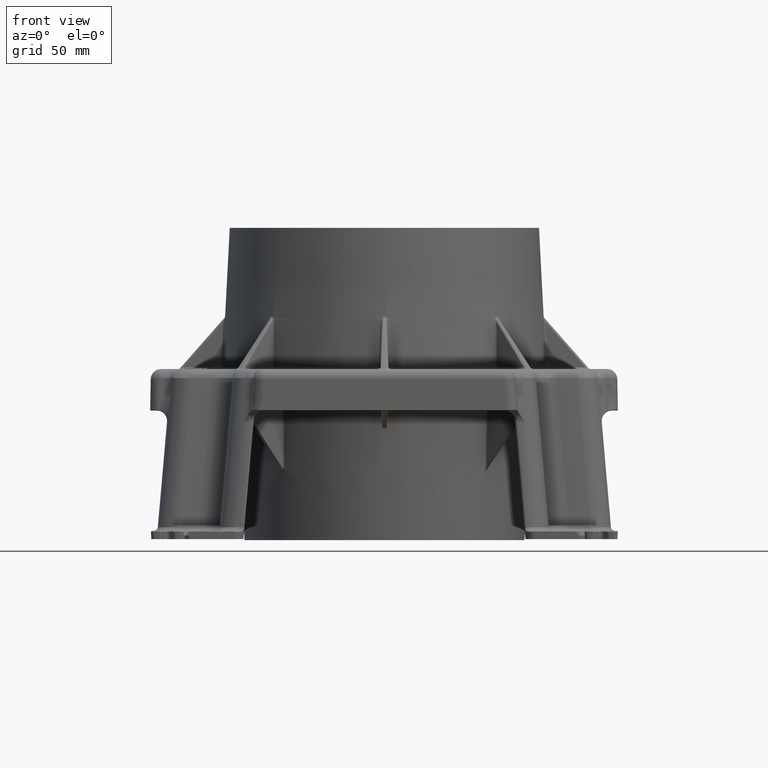
[diagram: clean part render]
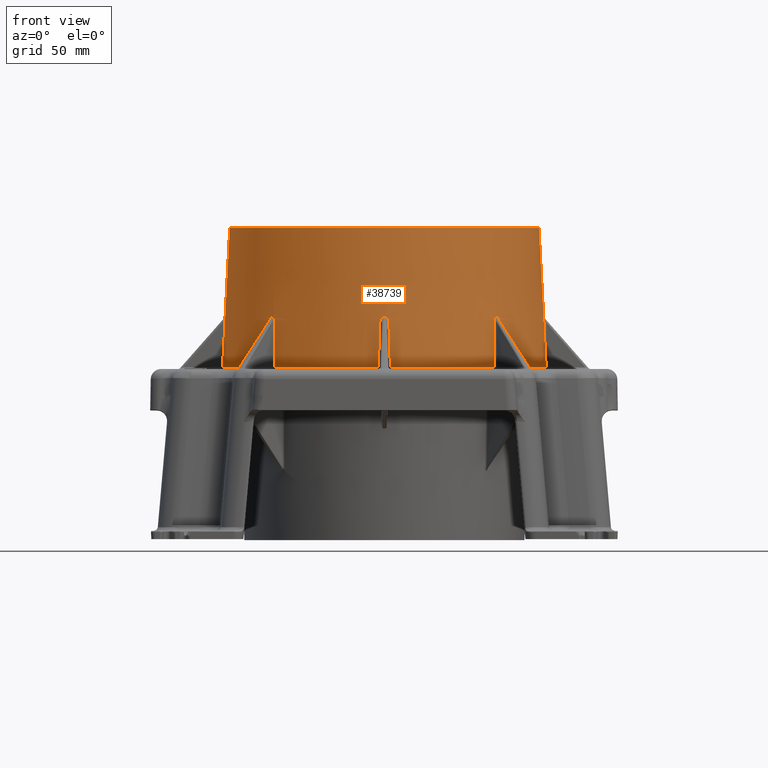
[diagram: same view with one face highlighted and labeled with its STEP entity id]
A machine part, front view. The second image highlights one B-rep face of the part: STEP entity #38739.
In plain terms, the highlighted conical surface has half-angle 3 deg.
Its self-contained STEP definition (entity closure, byte-faithful):
#37868=CARTESIAN_POINT('',(53.054847331327665,57.195955801669868,0.947664043757057));
#37869=VERTEX_POINT('',#37868);
#37909=CARTESIAN_POINT('',(52.801938465628552,55.904205932293458,22.240637407933296));
#37910=VERTEX_POINT('',#37909);
#37911=CARTESIAN_POINT('',(53.054847331327665,57.195955801669868,0.947664043757057));
#37912=CARTESIAN_POINT('',(52.971311480217807,56.766077102563479,8.045375595401914));
#37913=CARTESIAN_POINT('',(52.887019140935713,56.335503526758174,15.143034304313662));
#37914=CARTESIAN_POINT('',(52.801938465628552,55.904205932293458,22.240637407933296));
#37915=B_SPLINE_CURVE_WITH_KNOTS('',3,(#37911,#37912,#37913,#37914),.UNSPECIFIED.,.F.,.U.,(4,4),(-6.81843825506,-4.685046745072007),.UNSPECIFIED.);
#37916=EDGE_CURVE('',#37869,#37910,#37915,.T.);
#37996=CARTESIAN_POINT('',(-57.195955801669825,-53.054847331327707,0.947664043757044));
#37997=VERTEX_POINT('',#37996);
#38016=CARTESIAN_POINT('',(-55.904205931651816,-52.801938465501991,22.240637418491922));
#38017=VERTEX_POINT('',#38016);
#38025=CARTESIAN_POINT('',(-55.904205931651816,-52.801938465502005,22.240637418491922));
#38026=CARTESIAN_POINT('',(-56.335503522490853,-52.88701914009458,15.143034374549798));
#38027=CARTESIAN_POINT('',(-56.766077098065757,-52.971311479343832,8.0453756696631));
#38028=CARTESIAN_POINT('',(-57.19595580166984,-53.054847331327707,0.94766404375705));
#38029=B_SPLINE_CURVE_WITH_KNOTS('',3,(#38025,#38026,#38027,#38028),.UNSPECIFIED.,.F.,.U.,(4,4),(-2.133391532309018,0.0),.UNSPECIFIED.);
#38030=EDGE_CURVE('',#38017,#37997,#38029,.T.);
#38215=CARTESIAN_POINT('',(74.500000000000014,9.123619E-015,68.0));
#38216=VERTEX_POINT('',#38215);
#38217=CARTESIAN_POINT('',(0.0,0.0,68.0));
#38218=DIRECTION('',(0.0,0.0,-1.0));
#38219=DIRECTION('',(-1.0,0.0,0.0));
#38220=AXIS2_PLACEMENT_3D('',#38217,#38218,#38219);
#38221=CIRCLE('',#38220,74.500000000000014);
#38222=EDGE_CURVE('',#38216,#38216,#38221,.T.);
#38230=CARTESIAN_POINT('',(0.0,0.0,68.0));
#38231=DIRECTION('',(0.0,0.0,-1.0));
#38232=DIRECTION('',(-1.0,0.0,0.0));
#38233=AXIS2_PLACEMENT_3D('',#38230,#38231,#38232);
#38234=CONICAL_SURFACE('',#38233,74.500000000000014,3.0);
#38235=CARTESIAN_POINT('',(55.90420593165183,52.801938465501991,22.240637418491929));
#38236=VERTEX_POINT('',#38235);
#38237=CARTESIAN_POINT('',(57.195955801669847,53.054847331327693,0.947664043757044));
#38238=VERTEX_POINT('',#38237);
#38239=CARTESIAN_POINT('',(55.90420593165183,52.801938465501991,22.240637418491929));
#38240=CARTESIAN_POINT('',(56.335503522490868,52.887019140094573,15.143034374549803));
#38241=CARTESIAN_POINT('',(56.766077098065765,52.971311479343825,8.045375669663111));
#38242=CARTESIAN_POINT('',(57.195955801669847,53.054847331327693,0.947664043757059));
#38243=B_SPLINE_CURVE_WITH_KNOTS('',3,(#38239,#38240,#38241,#38242),.UNSPECIFIED.,.F.,.U.,(4,4),(-2.133391532309019,0.0),.UNSPECIFIED.);
#38244=EDGE_CURVE('',#38236,#38238,#38243,.T.);
#38245=ORIENTED_EDGE('',*,*,#38244,.F.);
#38246=CARTESIAN_POINT('',(55.182350522342404,53.363538940598502,24.794415291459742));
#38247=VERTEX_POINT('',#38246);
#38248=CARTESIAN_POINT('',(55.182255056040347,53.363641900041671,24.794284926839381));
#38249=CARTESIAN_POINT('',(55.230464751262872,53.319096194086015,24.723799526863882));
#38250=CARTESIAN_POINT('',(55.668305512340496,52.919266538942097,24.006650969126227));
#38251=CARTESIAN_POINT('',(55.854297446739139,52.792093180820473,23.061951105279945));
#38252=CARTESIAN_POINT('',(55.90420593165183,52.801938465501991,22.240637418491929));
#38253=B_SPLINE_CURVE_WITH_KNOTS('',3,(#38248,#38249,#38250,#38251,#38252),.UNSPECIFIED.,.F.,.U.,(4,1,4),(-1.930108454011966,-1.901445513878087,-1.654575739122429),.UNSPECIFIED.);
#38254=EDGE_CURVE('',#38247,#38236,#38253,.T.);
#38255=ORIENTED_EDGE('',*,*,#38254,.F.);
#38256=CARTESIAN_POINT('',(54.260452609866562,54.260452609866817,25.337097431648459));
#38257=VERTEX_POINT('',#38256);
#38258=CARTESIAN_POINT('',(55.182255057010707,53.363641899145044,24.794284925420641));
#38259=CARTESIAN_POINT('',(55.022853171620667,53.510929067867707,25.027339824727463));
#38260=CARTESIAN_POINT('',(54.732788556378402,53.787234134316236,25.316683494421532));
#38261=CARTESIAN_POINT('',(54.379215315393807,54.140125938499075,25.357777473758752));
#38262=CARTESIAN_POINT('',(54.260492676443292,54.260430090523151,25.336742514853803));
#38263=B_SPLINE_CURVE_WITH_KNOTS('',3,(#38258,#38259,#38260,#38261,#38262),.UNSPECIFIED.,.F.,.U.,(4,1,4),(1.930108453819656,2.024880401255916,2.075938405538209),.UNSPECIFIED.);
#38264=EDGE_CURVE('',#38247,#38257,#38263,.T.);
#38265=ORIENTED_EDGE('',*,*,#38264,.T.);
#38266=CARTESIAN_POINT('',(52.801938465628552,55.904205932293465,22.240637407933296));
#38267=CARTESIAN_POINT('',(52.794538260660957,55.866692241646057,22.857977492173582));
#38268=CARTESIAN_POINT('',(52.910161114996995,55.683291894300055,23.896453487385433));
#38269=CARTESIAN_POINT('',(53.38526306774871,55.15248740725508,24.939472785987217));
#38270=CARTESIAN_POINT('',(53.874392963873987,54.645253390838143,25.330449189616417));
#38271=CARTESIAN_POINT('',(54.14153416617787,54.377778992199389,25.358366510191996));
#38272=CARTESIAN_POINT('',(54.260385393831633,54.26052415617611,25.336978251210958));
#38273=B_SPLINE_CURVE_WITH_KNOTS('',3,(#38266,#38267,#38268,#38269,#38270,#38271,#38272),.UNSPECIFIED.,.F.,.U.,(4,1,1,1,4),(1.657452233987004,1.843011795419855,1.966718169876888,2.028571357105404,2.079662163757458),.UNSPECIFIED.);
#38274=EDGE_CURVE('',#37910,#38257,#38273,.T.);
#38275=ORIENTED_EDGE('',*,*,#38274,.F.);
#38276=ORIENTED_EDGE('',*,*,#37916,.F.);
#38277=CARTESIAN_POINT('',(2.928205881007981,77.959090526605621,0.947664043757044));
#38278=VERTEX_POINT('',#38277);
#38279=CARTESIAN_POINT('',(-4.440892E-015,0.0,0.947664043757044));
#38280=DIRECTION('',(0.0,0.0,-1.0));
#38281=DIRECTION('',(0.38268343236509,0.923879532511287,0.0));
#38282=AXIS2_PLACEMENT_3D('',#38279,#38280,#38281);
#38283=CIRCLE('',#38282,78.014064023207112);
#38284=EDGE_CURVE('',#38278,#37869,#38283,.T.);
#38285=ORIENTED_EDGE('',*,*,#38284,.F.);
#38286=CARTESIAN_POINT('',(2.193634362368942,76.866851859871488,22.240637418491929));
#38287=VERTEX_POINT('',#38286);
#38288=CARTESIAN_POINT('',(2.193634362368942,76.866851859871488,22.240637418491929));
#38289=CARTESIAN_POINT('',(2.438446691608308,77.231986433015535,15.143034374549803));
#38290=CARTESIAN_POINT('',(2.683304502011844,77.596051612789509,8.045375669663105));
#38291=CARTESIAN_POINT('',(2.928205881007977,77.959090526605621,0.94766404375705));
#38292=B_SPLINE_CURVE_WITH_KNOTS('',3,(#38288,#38289,#38290,#38291),.UNSPECIFIED.,.F.,.U.,(4,4),(-2.13339153230902,0.0),.UNSPECIFIED.);
#38293=EDGE_CURVE('',#38287,#38278,#38292,.T.);
#38294=ORIENTED_EDGE('',*,*,#38293,.F.);
#38295=CARTESIAN_POINT('',(1.286094003151709,76.753534509170933,24.794415291459757));
#38296=VERTEX_POINT('',#38295);
#38297=CARTESIAN_POINT('',(1.28644920824102,76.753524624119308,24.794749951119329));
#38298=CARTESIAN_POINT('',(1.351278941800433,76.756103653816098,24.72461145238471));
#38299=CARTESIAN_POINT('',(1.933549834899886,76.782830995002001,24.011713725030816));
#38300=CARTESIAN_POINT('',(2.16530394602201,76.824597392900927,23.061993311493374));
#38301=CARTESIAN_POINT('',(2.193634362368933,76.866851859871488,22.240637418491914));
#38302=B_SPLINE_CURVE_WITH_KNOTS('',3,(#38297,#38298,#38299,#38300,#38301),.UNSPECIFIED.,.F.,.U.,(4,1,4),(-1.930135368209171,-1.901457402243659,-1.65457494117999),.UNSPECIFIED.);
#38303=EDGE_CURVE('',#38296,#38287,#38302,.T.);
#38304=ORIENTED_EDGE('',*,*,#38303,.F.);
#38305=CARTESIAN_POINT('',(-5.529015E-014,76.735867981376074,25.337097431648452));
#38306=VERTEX_POINT('',#38305);
#38307=CARTESIAN_POINT('',(1.286914286049381,76.753543132016162,24.794246641002374));
#38308=CARTESIAN_POINT('',(1.212086019165678,76.750564296909602,24.875250092160218));
#38309=CARTESIAN_POINT('',(0.981621410077059,76.742805663596201,25.091783440041443));
#38310=CARTESIAN_POINT('',(0.547595802217504,76.735047663587991,25.327764805538418));
#38311=CARTESIAN_POINT('',(0.167879576463383,76.734747442547658,25.358063283216378));
#38312=CARTESIAN_POINT('',(0.000037842476934,76.735874341879125,25.336862507699184));
#38313=B_SPLINE_CURVE_WITH_KNOTS('',3,(#38307,#38308,#38309,#38310,#38311,#38312),.UNSPECIFIED.,.F.,.U.,(4,1,1,4),(1.930066780503768,1.963178017509576,2.024898632775494,2.075904213942357),.UNSPECIFIED.);
#38314=EDGE_CURVE('',#38296,#38306,#38313,.T.);
#38315=ORIENTED_EDGE('',*,*,#38314,.T.);
#38316=CARTESIAN_POINT('',(-2.193634362733158,76.86685186041467,22.240637407933271));
#38317=VERTEX_POINT('',#38316);
#38318=CARTESIAN_POINT('',(-2.193634362733165,76.86685186041467,22.240637407933264));
#38319=CARTESIAN_POINT('',(-2.172340912803818,76.835092940255777,22.857977492173497));
#38320=CARTESIAN_POINT('',(-1.960896692447957,76.787166823006658,23.896455845218647));
#38321=CARTESIAN_POINT('',(-1.249615126917981,76.747779343347815,24.939472800435158));
#38322=CARTESIAN_POINT('',(-0.545079510925728,76.73497777707459,25.330449848971973));
#38323=CARTESIAN_POINT('',(-0.167050131606044,76.734742215217011,25.358366622258135));
#38324=CARTESIAN_POINT('',(-0.000098073252763,76.735871041149608,25.336978279321507));
#38325=B_SPLINE_CURVE_WITH_KNOTS('',3,(#38318,#38319,#38320,#38321,#38322,#38323,#38324),.UNSPECIFIED.,.F.,.U.,(4,1,1,1,4),(1.657452233987,1.843011795419844,1.966718169876873,2.028571357105387,2.079662163757464),.UNSPECIFIED.);
#38326=EDGE_CURVE('',#38317,#38306,#38325,.T.);
#38327=ORIENTED_EDGE('',*,*,#38326,.F.);
#38328=CARTESIAN_POINT('',(-2.928205881008001,77.959090526605621,0.947664043757055));
#38329=VERTEX_POINT('',#38328);
#38330=CARTESIAN_POINT('',(-2.928205881008001,77.959090526605621,0.947664043757055));
#38331=CARTESIAN_POINT('',(-2.683304504404402,77.596051616336169,8.045375600322863));
#38332=CARTESIAN_POINT('',(-2.438446693878839,77.231986436400831,15.143034308724467));
#38333=CARTESIAN_POINT('',(-2.193634362733157,76.86685186041467,22.240637407933292));
#38334=B_SPLINE_CURVE_WITH_KNOTS('',3,(#38330,#38331,#38332,#38333),.UNSPECIFIED.,.F.,.U.,(4,4),(-6.818438256536871,-4.685046745069766),.UNSPECIFIED.);
#38335=EDGE_CURVE('',#38329,#38317,#38334,.T.);
#38336=ORIENTED_EDGE('',*,*,#38335,.F.);
#38337=CARTESIAN_POINT('',(-53.054847331327707,57.195955801669825,0.947664043757044));
#38338=VERTEX_POINT('',#38337);
#38339=CARTESIAN_POINT('',(2.220446E-015,0.0,0.947664043757044));
#38340=DIRECTION('',(0.0,0.0,-1.0));
#38341=DIRECTION('',(-0.38268343236509,0.923879532511287,0.0));
#38342=AXIS2_PLACEMENT_3D('',#38339,#38340,#38341);
#38343=CIRCLE('',#38342,78.014064023207126);
#38344=EDGE_CURVE('',#38338,#38329,#38343,.T.);
#38345=ORIENTED_EDGE('',*,*,#38344,.F.);
#38346=CARTESIAN_POINT('',(-52.801938465501991,55.90420593165183,22.240637418491925));
#38347=VERTEX_POINT('',#38346);
#38348=CARTESIAN_POINT('',(-52.801938465501991,55.90420593165183,22.240637418491925));
#38349=CARTESIAN_POINT('',(-52.887019140094573,56.335503522490868,15.143034374549798));
#38350=CARTESIAN_POINT('',(-52.971311479343825,56.766077098065765,8.045375669663104));
#38351=CARTESIAN_POINT('',(-53.054847331327693,57.195955801669847,0.947664043757053));
#38352=B_SPLINE_CURVE_WITH_KNOTS('',3,(#38348,#38349,#38350,#38351),.UNSPECIFIED.,.F.,.U.,(4,4),(-2.133391532309019,0.0),.UNSPECIFIED.);
#38353=EDGE_CURVE('',#38347,#38338,#38352,.T.);
#38354=ORIENTED_EDGE('',*,*,#38353,.F.);
#38355=CARTESIAN_POINT('',(-53.363538940598552,55.182350522342347,24.794415291459821));
#38356=VERTEX_POINT('',#38355);
#38357=CARTESIAN_POINT('',(-53.363276984476457,55.182598365226113,24.794754926600746));
#38358=CARTESIAN_POINT('',(-53.319239577563089,55.230284656890447,24.724586104158483));
#38359=CARTESIAN_POINT('',(-52.926422749134744,55.660900777242659,24.01167385674939));
#38360=CARTESIAN_POINT('',(-52.792093180815918,55.854297446716032,23.061951105660047));
#38361=CARTESIAN_POINT('',(-52.801938465501991,55.904205931651816,22.240637418491925));
#38362=B_SPLINE_CURVE_WITH_KNOTS('',3,(#38357,#38358,#38359,#38360,#38361),.UNSPECIFIED.,.F.,.U.,(4,1,4),(-1.930136039296104,-1.901445513315981,-1.654575738446072),.UNSPECIFIED.);
#38363=EDGE_CURVE('',#38356,#38347,#38362,.T.);
#38364=ORIENTED_EDGE('',*,*,#38363,.F.);
#38365=CARTESIAN_POINT('',(-54.260452609866746,54.260452609866626,25.337097431648459));
#38366=VERTEX_POINT('',#38365);
#38367=CARTESIAN_POINT('',(-53.362960458166107,55.182941127929723,24.794250420304124));
#38368=CARTESIAN_POINT('',(-53.413742019035162,55.127948848163648,24.875215384278082));
#38369=CARTESIAN_POINT('',(-53.571183084990999,54.95953711594381,25.091711466100843));
#38370=CARTESIAN_POINT('',(-53.872577305418332,54.647168840709767,25.327738455991167));
#38371=CARTESIAN_POINT('',(-54.140906684627986,54.378413200731643,25.358072950381988));
#38372=CARTESIAN_POINT('',(-54.260430008114,54.260484169120772,25.336863482684144));
#38373=B_SPLINE_CURVE_WITH_KNOTS('',3,(#38367,#38368,#38369,#38370,#38371,#38372),.UNSPECIFIED.,.F.,.U.,(4,1,1,4),(1.930067288219777,1.963162957033458,2.024880400750936,2.075904752804362),.UNSPECIFIED.);
#38374=EDGE_CURVE('',#38356,#38366,#38373,.T.);
#38375=ORIENTED_EDGE('',*,*,#38374,.T.);
#38376=CARTESIAN_POINT('',(-55.904205932293451,52.801938465628552,22.240637407933278));
#38377=VERTEX_POINT('',#38376);
#38378=CARTESIAN_POINT('',(-55.904205932293458,52.801938465628524,22.240637407933281));
#38379=CARTESIAN_POINT('',(-55.866692241646049,52.794538260660929,22.857977492173582));
#38380=CARTESIAN_POINT('',(-55.683291894300282,52.910161114996804,23.896453487385333));
#38381=CARTESIAN_POINT('',(-55.152487407255279,53.385263067748532,24.939472785987192));
#38382=CARTESIAN_POINT('',(-54.645253390838356,53.874392963873781,25.330449189616431));
#38383=CARTESIAN_POINT('',(-54.377778992199481,54.141534166177784,25.358366510192013));
#38384=CARTESIAN_POINT('',(-54.260524156176118,54.260385393831626,25.336978251210954));
#38385=B_SPLINE_CURVE_WITH_KNOTS('',3,(#38378,#38379,#38380,#38381,#38382,#38383,#38384),.UNSPECIFIED.,.F.,.U.,(4,1,1,1,4),(1.657452233987013,1.843011795419867,1.9667181698769,2.028571357105417,2.079662163757474),.UNSPECIFIED.);
#38386=EDGE_CURVE('',#38377,#38366,#38385,.T.);
#38387=ORIENTED_EDGE('',*,*,#38386,.F.);
#38388=CARTESIAN_POINT('',(-57.195955801669854,53.054847331327679,0.947664043757048));
#38389=VERTEX_POINT('',#38388);
#38390=CARTESIAN_POINT('',(-57.195955801669854,53.054847331327679,0.947664043757048));
#38391=CARTESIAN_POINT('',(-56.766077102563273,52.971311480217771,8.045375595405091));
#38392=CARTESIAN_POINT('',(-56.335503526757989,52.887019140935678,15.143034304316512));
#38393=CARTESIAN_POINT('',(-55.904205932293451,52.801938465628552,22.240637407933278));
#38394=B_SPLINE_CURVE_WITH_KNOTS('',3,(#38390,#38391,#38392,#38393),.UNSPECIFIED.,.F.,.U.,(4,4),(-6.818438255061111,-4.68504674507216),.UNSPECIFIED.);
#38395=EDGE_CURVE('',#38389,#38377,#38394,.T.);
#38396=ORIENTED_EDGE('',*,*,#38395,.F.);
#38397=CARTESIAN_POINT('',(-77.959090526605635,2.92820588100799,0.947664043757044));
#38398=VERTEX_POINT('',#38397);
#38399=CARTESIAN_POINT('',(-4.440892E-015,-8.881784E-015,0.947664043757044));
#38400=DIRECTION('',(0.0,0.0,-1.0));
#38401=DIRECTION('',(-0.923879532511287,0.38268343236509,0.0));
#38402=AXIS2_PLACEMENT_3D('',#38399,#38400,#38401);
#38403=CIRCLE('',#38402,78.014064023207126);
#38404=EDGE_CURVE('',#38398,#38389,#38403,.T.);
#38405=ORIENTED_EDGE('',*,*,#38404,.F.);
#38406=CARTESIAN_POINT('',(-76.866851859871488,2.19363436236895,22.240637418491929));
#38407=VERTEX_POINT('',#38406);
#38408=CARTESIAN_POINT('',(-76.866851859871488,2.19363436236895,22.240637418491929));
#38409=CARTESIAN_POINT('',(-77.231986433015535,2.438446691608316,15.143034374549803));
#38410=CARTESIAN_POINT('',(-77.596051612789509,2.683304502011852,8.045375669663104));
#38411=CARTESIAN_POINT('',(-77.959090526605621,2.928205881007985,0.947664043757048));
#38412=B_SPLINE_CURVE_WITH_KNOTS('',3,(#38408,#38409,#38410,#38411),.UNSPECIFIED.,.F.,.U.,(4,4),(-2.133391532309019,0.0),.UNSPECIFIED.);
#38413=EDGE_CURVE('',#38407,#38398,#38412,.T.);
#38414=ORIENTED_EDGE('',*,*,#38413,.F.);
#38415=CARTESIAN_POINT('',(-76.753534509170919,1.286094003151631,24.794415291459849));
#38416=VERTEX_POINT('',#38415);
#38417=CARTESIAN_POINT('',(-76.753563241882702,1.286094612080418,24.794416923454094));
#38418=CARTESIAN_POINT('',(-76.762315806243635,1.505531368479054,24.558444114938766));
#38419=CARTESIAN_POINT('',(-76.773431936859453,1.678751548253044,24.274355831190348));
#38420=CARTESIAN_POINT('',(-76.785730667912119,1.81002121376064,23.979530926287342));
#38421=CARTESIAN_POINT('',(-76.789648978751842,1.85184303676685,23.885601266735016));
#38422=CARTESIAN_POINT('',(-76.793735525364355,1.889979983422205,23.789439147228943));
#38423=CARTESIAN_POINT('',(-76.797966888909315,1.924693545732817,23.691908023124316));
#38424=CARTESIAN_POINT('',(-76.818129823441282,2.090107667398845,23.227160986087));
#38425=CARTESIAN_POINT('',(-76.841617964351201,2.176715754292718,22.731141979901128));
#38426=CARTESIAN_POINT('',(-76.866851859871488,2.193634362368942,22.240637418491914));
#38427=B_SPLINE_CURVE_WITH_KNOTS('',3,(#38417,#38418,#38419,#38420,#38421,#38422,#38423,#38424,#38425,#38426),.UNSPECIFIED.,.F.,.U.,(4,3,3,4),(-1.93006677954163,-1.832950971051725,-1.802010386735733,-1.654574939671317),.UNSPECIFIED.);
#38428=EDGE_CURVE('',#38416,#38407,#38427,.T.);
#38429=ORIENTED_EDGE('',*,*,#38428,.F.);
#38430=CARTESIAN_POINT('',(-76.753534509170606,-0.829677378773587,24.914437852688796));
#38431=VERTEX_POINT('',#38430);
#38432=CARTESIAN_POINT('',(-76.753539447446457,1.286414376152091,24.794718216966704));
#38433=CARTESIAN_POINT('',(-76.751794478433851,1.241990384414726,24.842018376799526));
#38434=CARTESIAN_POINT('',(-76.74389522245977,1.020162585316455,25.05935033602703));
#38435=CARTESIAN_POINT('',(-76.733700093266989,0.536429019066417,25.36684039028486));
#38436=CARTESIAN_POINT('',(-76.73541806707486,-0.22765672984978,25.361623104849539));
#38437=CARTESIAN_POINT('',(-76.746600100623368,-0.65310438790091,25.083164345649593));
#38438=CARTESIAN_POINT('',(-76.753534509171018,-0.829677378769441,24.914437852684415));
#38439=B_SPLINE_CURVE_WITH_KNOTS('',3,(#38432,#38433,#38434,#38435,#38436,#38437,#38438),.UNSPECIFIED.,.F.,.U.,(4,1,1,1,4),(1.930153183837151,1.949693300137965,2.023472890254627,2.097252480371289,2.171032070487951),.UNSPECIFIED.);
#38440=EDGE_CURVE('',#38416,#38431,#38439,.T.);
#38441=ORIENTED_EDGE('',*,*,#38440,.T.);
#38442=CARTESIAN_POINT('',(-76.753534509170791,-1.286094003148353,24.794415291463388));
#38443=VERTEX_POINT('',#38442);
#38444=CARTESIAN_POINT('',(-76.753534509170606,-0.829677378771534,24.914437852689218));
#38445=CARTESIAN_POINT('',(-76.753534509170763,-1.05787634081017,24.867372274223044));
#38446=CARTESIAN_POINT('',(-76.753534509170791,-1.286094003148353,24.794415291463388));
#38454=(BOUNDED_CURVE()B_SPLINE_CURVE(2,(#38444,#38445,#38446),.UNSPECIFIED.,.F.,.U.)B_SPLINE_CURVE_WITH_KNOTS((3,3),(0.692780758069511,0.746678022050331),.UNSPECIFIED.)CURVE()GEOMETRIC_REPRESENTATION_ITEM()RATIONAL_B_SPLINE_CURVE((1.001048237166264,1.001032152719798,1.001007221025747))REPRESENTATION_ITEM(''));
#38455=EDGE_CURVE('',#38431,#38443,#38454,.T.);
#38456=ORIENTED_EDGE('',*,*,#38455,.T.);
#38457=CARTESIAN_POINT('',(-76.866851859871474,-2.19363436236896,22.240637418491929));
#38458=VERTEX_POINT('',#38457);
#38459=CARTESIAN_POINT('',(-76.866851859871488,-2.193634362368952,22.240637418491929));
#38460=CARTESIAN_POINT('',(-76.827113632310912,-2.16699101286311,23.013081842108608));
#38461=CARTESIAN_POINT('',(-76.785234058075702,-1.939758265794111,23.953482663990421));
#38462=CARTESIAN_POINT('',(-76.757521677715829,-1.383858908459815,24.686469967641621));
#38463=CARTESIAN_POINT('',(-76.75359189354721,-1.284727499032454,24.793319200725161));
#38464=B_SPLINE_CURVE_WITH_KNOTS('',3,(#38459,#38460,#38461,#38462,#38463),.UNSPECIFIED.,.F.,.U.,(4,1,4),(1.657624426116482,1.889805118995563,1.93362845989776),.UNSPECIFIED.);
#38465=EDGE_CURVE('',#38458,#38443,#38464,.T.);
#38466=ORIENTED_EDGE('',*,*,#38465,.F.);
#38467=CARTESIAN_POINT('',(-77.959090526605621,-2.928205881007994,0.947664043757046));
#38468=VERTEX_POINT('',#38467);
#38469=CARTESIAN_POINT('',(-77.959090526605621,-2.928205881007994,0.947664043757048));
#38470=CARTESIAN_POINT('',(-77.596051612789509,-2.683304502011861,8.045375669663102));
#38471=CARTESIAN_POINT('',(-77.231986433015535,-2.438446691608325,15.143034374549798));
#38472=CARTESIAN_POINT('',(-76.866851859871488,-2.193634362368959,22.240637418491925));
#38473=B_SPLINE_CURVE_WITH_KNOTS('',3,(#38469,#38470,#38471,#38472),.UNSPECIFIED.,.F.,.U.,(4,4),(-2.133391532309019,0.0),.UNSPECIFIED.);
#38474=EDGE_CURVE('',#38468,#38458,#38473,.T.);
#38475=ORIENTED_EDGE('',*,*,#38474,.F.);
#38476=CARTESIAN_POINT('',(0.0,2.220446E-015,0.947664043757044));
#38477=DIRECTION('',(0.0,0.0,-1.0));
#38478=DIRECTION('',(-0.923879532511287,-0.38268343236509,0.0));
#38479=AXIS2_PLACEMENT_3D('',#38476,#38477,#38478);
#38480=CIRCLE('',#38479,78.014064023207126);
#38481=EDGE_CURVE('',#37997,#38468,#38480,.T.);
#38482=ORIENTED_EDGE('',*,*,#38481,.F.);
#38483=ORIENTED_EDGE('',*,*,#38030,.F.);
#38484=CARTESIAN_POINT('',(-55.18235052234261,-53.363538940598296,24.794415291459437));
#38485=VERTEX_POINT('',#38484);
#38486=CARTESIAN_POINT('',(-55.182586069195381,-53.36331460042571,24.794722547279534));
#38487=CARTESIAN_POINT('',(-55.33302961284118,-53.224287829224799,24.575838203336904));
#38488=CARTESIAN_POINT('',(-55.704607646419674,-52.896322255684737,23.781445483745244));
#38489=CARTESIAN_POINT('',(-55.866774567967326,-52.794554501990859,22.856622683582675));
#38490=CARTESIAN_POINT('',(-55.90420593165183,-52.801938465501991,22.240637418491914));
#38491=B_SPLINE_CURVE_WITH_KNOTS('',3,(#38486,#38487,#38488,#38489,#38490),.UNSPECIFIED.,.F.,.U.,(4,1,4),(-1.930075395828823,-1.839728070189096,-1.654575739122429),.UNSPECIFIED.);
#38492=EDGE_CURVE('',#38485,#38017,#38491,.T.);
#38493=ORIENTED_EDGE('',*,*,#38492,.F.);
#38494=CARTESIAN_POINT('',(-54.260452609866675,-54.260452609866697,25.33709743164847));
#38495=VERTEX_POINT('',#38494);
#38496=CARTESIAN_POINT('',(-55.182626567968292,-53.363277175122327,24.794663622519032));
#38497=CARTESIAN_POINT('',(-55.127518573623071,-53.414202833614397,24.874847191613142));
#38498=CARTESIAN_POINT('',(-54.958654349923826,-53.572194632114488,25.088556563797141));
#38499=CARTESIAN_POINT('',(-54.646722815609735,-53.872960735385469,25.329633707088256));
#38500=CARTESIAN_POINT('',(-54.378341804001955,-54.140966595670349,25.358416394998407));
#38501=CARTESIAN_POINT('',(-54.260466661846813,-54.260444574536642,25.336951100163002));
#38502=B_SPLINE_CURVE_WITH_KNOTS('',3,(#38496,#38497,#38498,#38499,#38500,#38501),.UNSPECIFIED.,.F.,.U.,(4,1,1,4),(1.930067288649817,1.963162957566874,2.024880401255763,2.075904753260923),.UNSPECIFIED.);
#38503=EDGE_CURVE('',#38485,#38495,#38502,.T.);
#38504=ORIENTED_EDGE('',*,*,#38503,.T.);
#38505=CARTESIAN_POINT('',(-52.80193846562856,-55.904205932293451,22.240637407933267));
#38506=VERTEX_POINT('',#38505);
#38507=CARTESIAN_POINT('',(-52.801938465628538,-55.904205932293458,22.240637407933264));
#38508=CARTESIAN_POINT('',(-52.79453826066095,-55.866692241646057,22.857977492173539));
#38509=CARTESIAN_POINT('',(-52.910161114996853,-55.683291894300204,23.896453487385291));
#38510=CARTESIAN_POINT('',(-53.385263067748561,-55.152487407255222,24.939472785987142));
#38511=CARTESIAN_POINT('',(-53.874392963873909,-54.645253390838207,25.330449189616434));
#38512=CARTESIAN_POINT('',(-54.14153416617782,-54.377778992199453,25.358366510192024));
#38513=CARTESIAN_POINT('',(-54.260385393831669,-54.260524156176075,25.336978251210951));
#38514=B_SPLINE_CURVE_WITH_KNOTS('',3,(#38507,#38508,#38509,#38510,#38511,#38512,#38513),.UNSPECIFIED.,.F.,.U.,(4,1,1,1,4),(1.657452233987013,1.843011795419866,1.966718169876898,2.028571357105414,2.079662163757481),.UNSPECIFIED.);
#38515=EDGE_CURVE('',#38506,#38495,#38514,.T.);
#38516=ORIENTED_EDGE('',*,*,#38515,.F.);
#38517=CARTESIAN_POINT('',(-53.054847331327686,-57.195955801669854,0.947664043757059));
#38518=VERTEX_POINT('',#38517);
#38519=CARTESIAN_POINT('',(-53.054847331327686,-57.195955801669854,0.947664043757059));
#38520=CARTESIAN_POINT('',(-52.97131148021775,-56.766077102563074,8.045375595408288));
#38521=CARTESIAN_POINT('',(-52.887019140935656,-56.335503526757819,15.143034304319368));
#38522=CARTESIAN_POINT('',(-52.80193846562856,-55.904205932293451,22.240637407933278));
#38523=B_SPLINE_CURVE_WITH_KNOTS('',3,(#38519,#38520,#38521,#38522),.UNSPECIFIED.,.F.,.U.,(4,4),(-6.818438255062223,-4.685046745072314),.UNSPECIFIED.);
#38524=EDGE_CURVE('',#38518,#38506,#38523,.T.);
#38525=ORIENTED_EDGE('',*,*,#38524,.F.);
#38526=CARTESIAN_POINT('',(-2.928205881007999,-77.959090526605621,0.947664043757044));
#38527=VERTEX_POINT('',#38526);
#38528=CARTESIAN_POINT('',(2.220446E-015,0.0,0.947664043757044));
#38529=DIRECTION('',(0.0,0.0,-1.0));
#38530=DIRECTION('',(-0.38268343236509,-0.923879532511287,0.0));
#38531=AXIS2_PLACEMENT_3D('',#38528,#38529,#38530);
#38532=CIRCLE('',#38531,78.014064023207126);
#38533=EDGE_CURVE('',#38527,#38518,#38532,.T.);
#38534=ORIENTED_EDGE('',*,*,#38533,.F.);
#38535=CARTESIAN_POINT('',(-2.193634362368957,-76.866851859871488,22.240637418491925));
#38536=VERTEX_POINT('',#38535);
#38537=CARTESIAN_POINT('',(-2.193634362368957,-76.866851859871488,22.240637418491929));
#38538=CARTESIAN_POINT('',(-2.438446691608323,-77.231986433015535,15.143034374549803));
#38539=CARTESIAN_POINT('',(-2.683304502011859,-77.596051612789509,8.045375669663104));
#38540=CARTESIAN_POINT('',(-2.928205881007993,-77.959090526605621,0.94766404375705));
#38541=B_SPLINE_CURVE_WITH_KNOTS('',3,(#38537,#38538,#38539,#38540),.UNSPECIFIED.,.F.,.U.,(4,4),(-2.133391532309019,0.0),.UNSPECIFIED.);
#38542=EDGE_CURVE('',#38536,#38527,#38541,.T.);
#38543=ORIENTED_EDGE('',*,*,#38542,.F.);
#38544=CARTESIAN_POINT('',(-1.286094003151926,-76.753534509170933,24.794415291459536));
#38545=VERTEX_POINT('',#38544);
#38546=CARTESIAN_POINT('',(-1.286096979966105,-76.753664831921142,24.79442283001687));
#38547=CARTESIAN_POINT('',(-1.408041218318999,-76.758465193602277,24.66328345816466));
#38548=CARTESIAN_POINT('',(-1.516687780134136,-76.764069133239317,24.515388238876739));
#38549=CARTESIAN_POINT('',(-1.610779815636093,-76.770166281432282,24.361187048983325));
#38550=CARTESIAN_POINT('',(-1.686002712682378,-76.775040712603285,24.23790923731854));
#38551=CARTESIAN_POINT('',(-1.751936092651557,-76.780228678600523,24.110642282790362));
#38552=CARTESIAN_POINT('',(-1.810486740939569,-76.785711833341409,23.979741990649504));
#38553=CARTESIAN_POINT('',(-1.852048357601084,-76.789603998195261,23.886823672545205));
#38554=CARTESIAN_POINT('',(-1.889605407529604,-76.79364090154715,23.79230027934101));
#38555=CARTESIAN_POINT('',(-1.923826227829854,-76.797823842571191,23.696191472744694));
#38556=CARTESIAN_POINT('',(-2.088911907259087,-76.818002893070485,23.232550113569861));
#38557=CARTESIAN_POINT('',(-2.176679777735652,-76.841564305759519,22.732185012830826));
#38558=CARTESIAN_POINT('',(-2.19363436236895,-76.866851859871474,22.240637418491925));
#38559=B_SPLINE_CURVE_WITH_KNOTS('',3,(#38546,#38547,#38548,#38549,#38550,#38551,#38552,#38553,#38554,#38555,#38556,#38557,#38558),.UNSPECIFIED.,.F.,.U.,(4,3,3,3,4),(-1.930066779503362,-1.876097386449118,-1.832950970541414,-1.802323900633439,-1.654574939611377),.UNSPECIFIED.);
#38560=EDGE_CURVE('',#38545,#38536,#38559,.T.);
#38561=ORIENTED_EDGE('',*,*,#38560,.F.);
#38562=CARTESIAN_POINT('',(0.829677378773869,-76.753534509170606,24.914437852688742));
#38563=VERTEX_POINT('',#38562);
#38564=CARTESIAN_POINT('',(-1.286096979990634,-76.753664831921199,24.794422830006205));
#38565=CARTESIAN_POINT('',(-1.071066555670403,-76.745065944755112,25.027986914107988));
#38566=CARTESIAN_POINT('',(-0.610543860949285,-76.733799883344275,25.359527285288522));
#38567=CARTESIAN_POINT('',(0.231097327694552,-76.735299059202873,25.366999912478686));
#38568=CARTESIAN_POINT('',(0.652279758219655,-76.746668018390039,25.082023566042334));
#38569=CARTESIAN_POINT('',(0.828651434580491,-76.753603593774656,24.913353066051901));
#38570=B_SPLINE_CURVE_WITH_KNOTS('',3,(#38564,#38565,#38566,#38567,#38568,#38569),.UNSPECIFIED.,.F.,.U.,(4,1,1,4),(1.929344764331316,2.023472890215786,2.097252480336668,2.17103207045755),.UNSPECIFIED.);
#38571=EDGE_CURVE('',#38545,#38563,#38570,.T.);
#38572=ORIENTED_EDGE('',*,*,#38571,.T.);
#38573=CARTESIAN_POINT('',(1.28609400314832,-76.753534509170791,24.794415291463419));
#38574=VERTEX_POINT('',#38573);
#38575=CARTESIAN_POINT('',(0.82967737877144,-76.753534509170592,24.914437852689243));
#38576=CARTESIAN_POINT('',(1.057876340810112,-76.753534509170734,24.867372274223072));
#38577=CARTESIAN_POINT('',(1.28609400314832,-76.753534509170791,24.794415291463419));
#38585=(BOUNDED_CURVE()B_SPLINE_CURVE(2,(#38575,#38576,#38577),.UNSPECIFIED.,.F.,.U.)B_SPLINE_CURVE_WITH_KNOTS((3,3),(0.692780758069463,0.746678022050287),.UNSPECIFIED.)CURVE()GEOMETRIC_REPRESENTATION_ITEM()RATIONAL_B_SPLINE_CURVE((1.001048237166238,1.001032152719771,1.001007221025721))REPRESENTATION_ITEM(''));
#38586=EDGE_CURVE('',#38563,#38574,#38585,.T.);
#38587=ORIENTED_EDGE('',*,*,#38586,.T.);
#38588=CARTESIAN_POINT('',(2.193634362368963,-76.866851859871474,22.240637418491929));
#38589=VERTEX_POINT('',#38588);
#38590=CARTESIAN_POINT('',(2.193634362368953,-76.866851859871488,22.240637418491911));
#38591=CARTESIAN_POINT('',(2.173651850239573,-76.837048189201056,22.819970736204414));
#38592=CARTESIAN_POINT('',(1.988051579111195,-76.794053769892827,23.743694349819791));
#38593=CARTESIAN_POINT('',(1.51547909376192,-76.762716423078018,24.545487501390863));
#38594=CARTESIAN_POINT('',(1.283213606824342,-76.75363751668057,24.791701885553493));
#38595=B_SPLINE_CURVE_WITH_KNOTS('',3,(#38590,#38591,#38592,#38593,#38594),.UNSPECIFIED.,.F.,.U.,(4,1,4),(1.657624426116488,1.831759945775799,1.933703471276189),.UNSPECIFIED.);
#38596=EDGE_CURVE('',#38589,#38574,#38595,.T.);
#38597=ORIENTED_EDGE('',*,*,#38596,.F.);
#38598=CARTESIAN_POINT('',(2.928205881007993,-77.959090526605621,0.947664043757046));
#38599=VERTEX_POINT('',#38598);
#38600=CARTESIAN_POINT('',(2.928205881007993,-77.959090526605621,0.947664043757048));
#38601=CARTESIAN_POINT('',(2.683304502011859,-77.596051612789509,8.045375669663102));
#38602=CARTESIAN_POINT('',(2.438446691608323,-77.231986433015535,15.143034374549798));
#38603=CARTESIAN_POINT('',(2.193634362368957,-76.866851859871488,22.240637418491925));
#38604=B_SPLINE_CURVE_WITH_KNOTS('',3,(#38600,#38601,#38602,#38603),.UNSPECIFIED.,.F.,.U.,(4,4),(-2.133391532309019,0.0),.UNSPECIFIED.);
#38605=EDGE_CURVE('',#38599,#38589,#38604,.T.);
#38606=ORIENTED_EDGE('',*,*,#38605,.F.);
#38607=CARTESIAN_POINT('',(53.054847331327707,-57.195955801669847,0.947664043757044));
#38608=VERTEX_POINT('',#38607);
#38609=CARTESIAN_POINT('',(4.440892E-015,0.0,0.947664043757044));
#38610=DIRECTION('',(0.0,0.0,-1.0));
#38611=DIRECTION('',(0.38268343236509,-0.923879532511287,0.0));
#38612=AXIS2_PLACEMENT_3D('',#38609,#38610,#38611);
#38613=CIRCLE('',#38612,78.014064023207126);
#38614=EDGE_CURVE('',#38608,#38599,#38613,.T.);
#38615=ORIENTED_EDGE('',*,*,#38614,.F.);
#38616=CARTESIAN_POINT('',(52.801938465502012,-55.904205931651809,22.2406374184919));
#38617=VERTEX_POINT('',#38616);
#38618=CARTESIAN_POINT('',(52.801938465502012,-55.904205931651816,22.2406374184919));
#38619=CARTESIAN_POINT('',(52.887019140094587,-56.335503522490853,15.143034374549789));
#38620=CARTESIAN_POINT('',(52.971311479343839,-56.76607709806575,8.045375669663095));
#38621=CARTESIAN_POINT('',(53.054847331327714,-57.195955801669825,0.947664043757053));
#38622=B_SPLINE_CURVE_WITH_KNOTS('',3,(#38618,#38619,#38620,#38621),.UNSPECIFIED.,.F.,.U.,(4,4),(-2.133391532309016,0.0),.UNSPECIFIED.);
#38623=EDGE_CURVE('',#38617,#38608,#38622,.T.);
#38624=ORIENTED_EDGE('',*,*,#38623,.F.);
#38625=CARTESIAN_POINT('',(53.363538940598517,-55.182350522342389,24.794415291459728));
#38626=VERTEX_POINT('',#38625);
#38627=CARTESIAN_POINT('',(53.36331460042593,-55.182586069195153,24.794722547279807));
#38628=CARTESIAN_POINT('',(53.224287829225496,-55.333029612840434,24.575838203337984));
#38629=CARTESIAN_POINT('',(52.896322255684979,-55.704607646419333,23.781445483746523));
#38630=CARTESIAN_POINT('',(52.794554501990866,-55.866774567967248,22.856622683583826));
#38631=CARTESIAN_POINT('',(52.801938465502012,-55.904205931651816,22.240637418491897));
#38632=B_SPLINE_CURVE_WITH_KNOTS('',3,(#38627,#38628,#38629,#38630,#38631),.UNSPECIFIED.,.F.,.U.,(4,1,4),(-1.930075395828855,-1.839728070189448,-1.65457573912243),.UNSPECIFIED.);
#38633=EDGE_CURVE('',#38626,#38617,#38632,.T.);
#38634=ORIENTED_EDGE('',*,*,#38633,.F.);
#38635=CARTESIAN_POINT('',(54.260452609866633,-54.260452609866746,25.337097431648459));
#38636=VERTEX_POINT('',#38635);
#38637=CARTESIAN_POINT('',(53.36327717512259,-55.182626567968001,24.79466362251938));
#38638=CARTESIAN_POINT('',(53.414202833615505,-55.12751857362187,24.874847191614791));
#38639=CARTESIAN_POINT('',(53.572194632116918,-54.958654349921254,25.088556563799926));
#38640=CARTESIAN_POINT('',(53.872960735388624,-54.646722815606559,25.329633707089279));
#38641=CARTESIAN_POINT('',(54.140966595671962,-54.378341804000371,25.35841639499807));
#38642=CARTESIAN_POINT('',(54.260444574536599,-54.260466661846863,25.336951100162985));
#38643=B_SPLINE_CURVE_WITH_KNOTS('',3,(#38637,#38638,#38639,#38640,#38641,#38642),.UNSPECIFIED.,.F.,.U.,(4,1,1,4),(1.93006728864986,1.96316295756746,2.024880401256465,2.075904753260916),.UNSPECIFIED.);
#38644=EDGE_CURVE('',#38626,#38636,#38643,.T.);
#38645=ORIENTED_EDGE('',*,*,#38644,.T.);
#38646=CARTESIAN_POINT('',(55.904205932293465,-52.801938465628531,22.240637407933285));
#38647=VERTEX_POINT('',#38646);
#38648=CARTESIAN_POINT('',(55.904205932293472,-52.801938465628524,22.240637407933271));
#38649=CARTESIAN_POINT('',(55.866692241646064,-52.794538260660929,22.857977492173582));
#38650=CARTESIAN_POINT('',(55.683291894300019,-52.910161114997081,23.896453487385401));
#38651=CARTESIAN_POINT('',(55.152487407255066,-53.385263067748738,24.939472785987277));
#38652=CARTESIAN_POINT('',(54.645253390837951,-53.874392963874193,25.330449189616434));
#38653=CARTESIAN_POINT('',(54.377778992199381,-54.141534166177891,25.358366510192027));
#38654=CARTESIAN_POINT('',(54.260524156176011,-54.26038539383174,25.336978251210933));
#38655=B_SPLINE_CURVE_WITH_KNOTS('',3,(#38648,#38649,#38650,#38651,#38652,#38653,#38654),.UNSPECIFIED.,.F.,.U.,(4,1,1,1,4),(1.657452233987,1.843011795419856,1.966718169876891,2.028571357105409,2.079662163757481),.UNSPECIFIED.);
#38656=EDGE_CURVE('',#38647,#38636,#38655,.T.);
#38657=ORIENTED_EDGE('',*,*,#38656,.F.);
#38658=CARTESIAN_POINT('',(57.195955801669875,-53.054847331327657,0.947664043757059));
#38659=VERTEX_POINT('',#38658);
#38660=CARTESIAN_POINT('',(57.195955801669875,-53.054847331327657,0.947664043757059));
#38661=CARTESIAN_POINT('',(56.766077102563685,-52.971311480217835,8.045375595398735));
#38662=CARTESIAN_POINT('',(56.335503526758359,-52.887019140935728,15.143034304310802));
#38663=CARTESIAN_POINT('',(55.904205932293465,-52.801938465628531,22.240637407933285));
#38664=B_SPLINE_CURVE_WITH_KNOTS('',3,(#38660,#38661,#38662,#38663),.UNSPECIFIED.,.F.,.U.,(4,4),(-6.81843825505889,-4.685046745071854),.UNSPECIFIED.);
#38665=EDGE_CURVE('',#38659,#38647,#38664,.T.);
#38666=ORIENTED_EDGE('',*,*,#38665,.F.);
#38667=CARTESIAN_POINT('',(77.959090526605607,-2.928205881007981,0.947664043757044));
#38668=VERTEX_POINT('',#38667);
#38669=CARTESIAN_POINT('',(0.0,0.0,0.947664043757044));
#38670=DIRECTION('',(0.0,0.0,-1.0));
#38671=DIRECTION('',(0.923879532511287,-0.38268343236509,0.0));
#38672=AXIS2_PLACEMENT_3D('',#38669,#38670,#38671);
#38673=CIRCLE('',#38672,78.014064023207112);
#38674=EDGE_CURVE('',#38668,#38659,#38673,.T.);
#38675=ORIENTED_EDGE('',*,*,#38674,.F.);
#38676=CARTESIAN_POINT('',(76.866851859871488,-2.193634362368941,22.240637418491929));
#38677=VERTEX_POINT('',#38676);
#38678=CARTESIAN_POINT('',(76.866851859871488,-2.193634362368941,22.240637418491929));
#38679=CARTESIAN_POINT('',(77.231986433015535,-2.438446691608307,15.143034374549803));
#38680=CARTESIAN_POINT('',(77.596051612789509,-2.683304502011843,8.045375669663105));
#38681=CARTESIAN_POINT('',(77.959090526605621,-2.928205881007976,0.94766404375705));
#38682=B_SPLINE_CURVE_WITH_KNOTS('',3,(#38678,#38679,#38680,#38681),.UNSPECIFIED.,.F.,.U.,(4,4),(-2.13339153230902,0.0),.UNSPECIFIED.);
#38683=EDGE_CURVE('',#38677,#38668,#38682,.T.);
#38684=ORIENTED_EDGE('',*,*,#38683,.F.);
#38685=CARTESIAN_POINT('',(76.753534509170919,-1.286094003151614,24.794415291459856));
#38686=VERTEX_POINT('',#38685);
#38687=CARTESIAN_POINT('',(76.753524624118938,-1.286449208251093,24.794749951129006));
#38688=CARTESIAN_POINT('',(76.756103653793161,-1.351278941241592,24.724611453007551));
#38689=CARTESIAN_POINT('',(76.782830994962396,-1.933549834721562,24.011713725998511));
#38690=CARTESIAN_POINT('',(76.824597392860539,-2.165303945994949,23.061993312278183));
#38691=CARTESIAN_POINT('',(76.866851859871474,-2.193634362368941,22.240637418491911));
#38692=B_SPLINE_CURVE_WITH_KNOTS('',3,(#38687,#38688,#38689,#38690,#38691),.UNSPECIFIED.,.F.,.U.,(4,1,4),(-3.584710309491718,-3.556032343779239,-3.30914988247967),.UNSPECIFIED.);
#38693=EDGE_CURVE('',#38686,#38677,#38692,.T.);
#38694=ORIENTED_EDGE('',*,*,#38693,.F.);
#38695=CARTESIAN_POINT('',(76.735867981376074,9.035525E-015,25.337097431648452));
#38696=VERTEX_POINT('',#38695);
#38697=CARTESIAN_POINT('',(76.753543132017029,-1.286914286090202,24.794246640978756));
#38698=CARTESIAN_POINT('',(76.750564296881677,-1.212086018489099,24.875250092919032));
#38699=CARTESIAN_POINT('',(76.742805663544033,-0.981621408339017,25.091783441538414));
#38700=CARTESIAN_POINT('',(76.735047663572914,-0.547595799937553,25.327764806105023));
#38701=CARTESIAN_POINT('',(76.734747442556738,-0.16787957525334,25.358063283030493));
#38702=CARTESIAN_POINT('',(76.735874341879494,-0.000037842492365,25.336862507683897));
#38703=B_SPLINE_CURVE_WITH_KNOTS('',3,(#38697,#38698,#38699,#38700,#38701,#38702),.UNSPECIFIED.,.F.,.U.,(4,1,1,4),(3.584641721781782,3.617752959104132,3.679473574429024,3.730479155222686),.UNSPECIFIED.);
#38704=EDGE_CURVE('',#38686,#38696,#38703,.T.);
#38705=ORIENTED_EDGE('',*,*,#38704,.T.);
#38706=CARTESIAN_POINT('',(76.866851860414684,2.193634362733162,22.240637407933267));
#38707=VERTEX_POINT('',#38706);
#38708=CARTESIAN_POINT('',(76.86685186041467,2.19363436273317,22.240637407933271));
#38709=CARTESIAN_POINT('',(76.835092940255777,2.172340912803816,22.857977492173561));
#38710=CARTESIAN_POINT('',(76.787166823006629,1.960896692447848,23.89645584521881));
#38711=CARTESIAN_POINT('',(76.747779343347787,1.24961512691771,24.939472800435372));
#38712=CARTESIAN_POINT('',(76.73497777707459,0.545079510925714,25.330449848971938));
#38713=CARTESIAN_POINT('',(76.734742215216997,0.167050131605966,25.358366622258124));
#38714=CARTESIAN_POINT('',(76.735871041149593,0.000098073252713,25.336978279321507));
#38715=B_SPLINE_CURVE_WITH_KNOTS('',3,(#38708,#38709,#38710,#38711,#38712,#38713,#38714),.UNSPECIFIED.,.F.,.U.,(4,1,1,1,4),(1.657452233987,1.843011795419853,1.966718169876887,2.028571357105405,2.079662163757471),.UNSPECIFIED.);
#38716=EDGE_CURVE('',#38707,#38696,#38715,.T.);
#38717=ORIENTED_EDGE('',*,*,#38716,.F.);
#38718=CARTESIAN_POINT('',(77.959090526605621,2.928205881008006,0.947664043757059));
#38719=VERTEX_POINT('',#38718);
#38720=CARTESIAN_POINT('',(77.959090526605621,2.928205881008006,0.947664043757059));
#38721=CARTESIAN_POINT('',(77.596051616336396,2.68330450440456,8.045375600318419));
#38722=CARTESIAN_POINT('',(77.231986436401044,2.438446693878981,15.143034308720473));
#38723=CARTESIAN_POINT('',(76.866851860414684,2.193634362733163,22.24063740793326));
#38724=B_SPLINE_CURVE_WITH_KNOTS('',3,(#38720,#38721,#38722,#38723),.UNSPECIFIED.,.F.,.U.,(4,4),(-6.818438256535757,-4.685046745069988),.UNSPECIFIED.);
#38725=EDGE_CURVE('',#38719,#38707,#38724,.T.);
#38726=ORIENTED_EDGE('',*,*,#38725,.F.);
#38727=CARTESIAN_POINT('',(0.0,2.220446E-015,0.947664043757044));
#38728=DIRECTION('',(0.0,0.0,-1.0));
#38729=DIRECTION('',(0.923879532511287,0.38268343236509,0.0));
#38730=AXIS2_PLACEMENT_3D('',#38727,#38728,#38729);
#38731=CIRCLE('',#38730,78.014064023207126);
#38732=EDGE_CURVE('',#38238,#38719,#38731,.T.);
#38733=ORIENTED_EDGE('',*,*,#38732,.F.);
#38734=EDGE_LOOP('',(#38245,#38255,#38265,#38275,#38276,#38285,#38294,#38304,#38315,#38327,#38336,#38345,#38354,#38364,#38375,#38387,#38396,#38405,#38414,#38429,#38441,#38456,#38466,#38475,#38482,#38483,#38493,#38504,#38516,#38525,#38534,#38543,#38561,#38572,#38587,#38597,#38606,#38615,#38624,#38634,#38645,#38657,#38666,#38675,#38684,#38694,#38705,#38717,#38726,#38733));
#38735=FACE_OUTER_BOUND('',#38734,.T.);
#38736=ORIENTED_EDGE('',*,*,#38222,.T.);
#38737=EDGE_LOOP('',(#38736));
#38738=FACE_BOUND('',#38737,.T.);
#38739=ADVANCED_FACE('',(#38735,#38738),#38234,.T.);